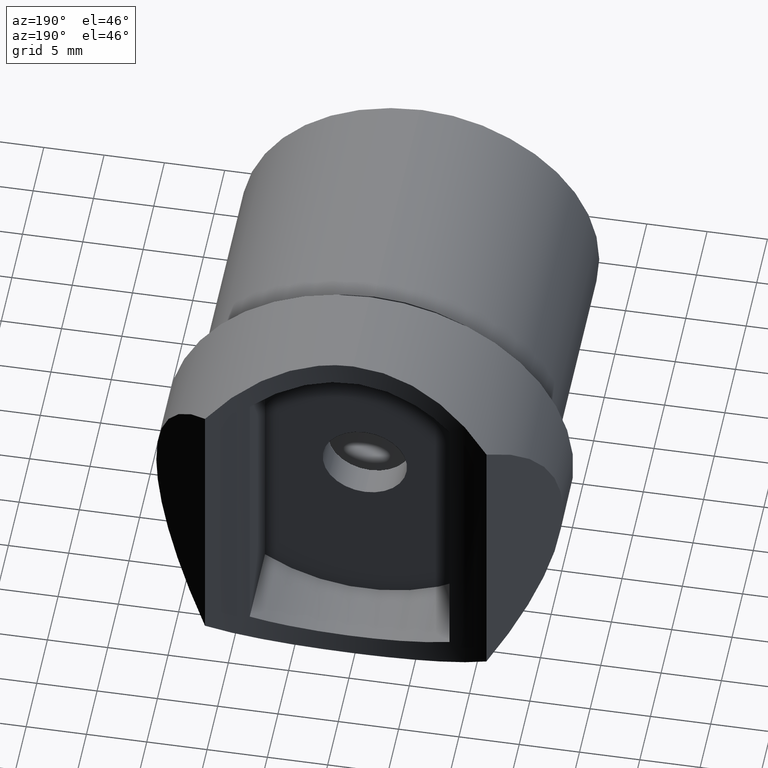
[diagram: clean part render]
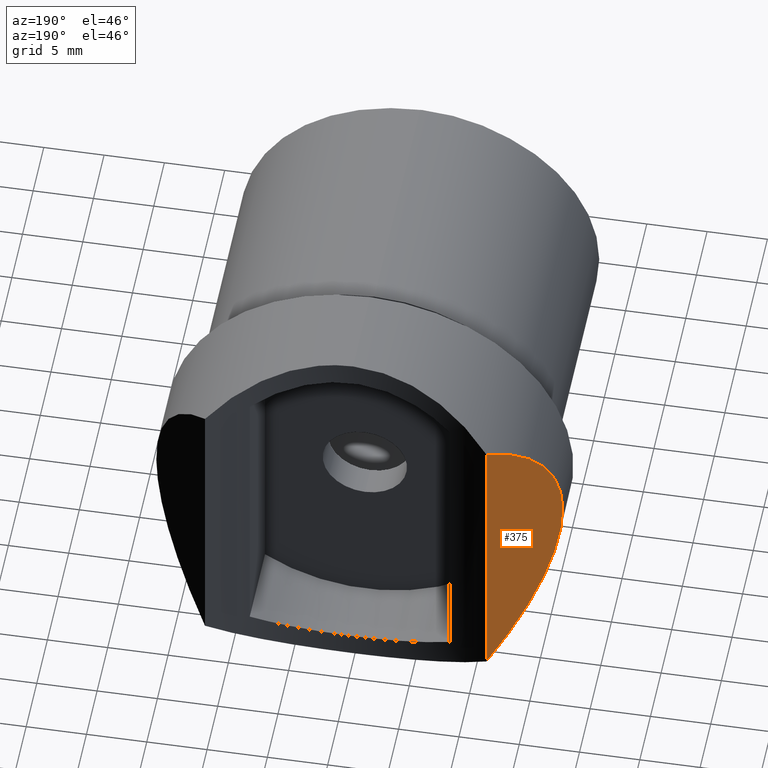
[diagram: same view with one face highlighted and labeled with its STEP entity id]
A machine part, auxiliary view. The second image highlights one B-rep face of the part: STEP entity #375.
In plain terms, the highlighted planar face has unit normal (0.7819, -0.6233, 0).
Its self-contained STEP definition (entity closure, byte-faithful):
#131 = VECTOR ( 'NONE', #12064, 1000.000000000000000 ) ;
#375 = ADVANCED_FACE ( 'NONE', ( #6224 ), #8584, .F. ) ;
#734 = EDGE_CURVE ( 'NONE', #911, #10821, #4305, .T. ) ;
#911 = VERTEX_POINT ( 'NONE', #4551 ) ;
#3212 = CARTESIAN_POINT ( 'NONE',  ( -11.66833321430273100, 11.50000000000000700, 12.15617127223863700 ) ) ;
#3749 = DIRECTION ( 'NONE',  ( 0.6233493240158779500, 0.7819434891659038400, 0.0000000000000000000 ) ) ;
#4197 = CARTESIAN_POINT ( 'NONE',  ( -19.02263816828683200, 2.274593547225940000, 5.097001173290132100 ) ) ;
#4305 =( BOUNDED_CURVE ( )  B_SPLINE_CURVE ( 3, ( #3212, #4197, #7951, #7990 ),
 .UNSPECIFIED., .F., .F. ) 
 B_SPLINE_CURVE_WITH_KNOTS ( ( 4, 4 ),
 ( 5.477313689855880500, 7.089056924503291900 ),
 .UNSPECIFIED. ) 
 CURVE ( )  GEOMETRIC_REPRESENTATION_ITEM ( )  RATIONAL_B_SPLINE_CURVE ( ( 1.000000000000000000, 0.7949884555609385600, 0.7949884555609385600, 1.000000000000000000 ) ) 
 REPRESENTATION_ITEM ( '' )  );
#4551 = CARTESIAN_POINT ( 'NONE',  ( -11.66833321430273100, 11.50000000000000700, 12.15617127223863700 ) ) ;
#5132 = AXIS2_PLACEMENT_3D ( 'NONE', #10366, #11396, #3749 ) ;
#5218 = LINE ( 'NONE', #6341, #131 ) ;
#5410 = ORIENTED_EDGE ( 'NONE', *, *, #734, .F. ) ;
#5672 = ORIENTED_EDGE ( 'NONE', *, *, #10565, .F. ) ;
#6224 = FACE_OUTER_BOUND ( 'NONE', #7865, .T. ) ;
#6341 = CARTESIAN_POINT ( 'NONE',  ( -11.66833321430273100, 11.50000000000000700, -16.85000000000000100 ) ) ;
#7865 = EDGE_LOOP ( 'NONE', ( #5410, #5672 ) ) ;
#7951 = CARTESIAN_POINT ( 'NONE',  ( -19.02263816828683200, 2.274593547225938200, -5.097001173290127700 ) ) ;
#7990 = CARTESIAN_POINT ( 'NONE',  ( -11.66833321430273100, 11.50000000000000700, -12.15617127223863700 ) ) ;
#8584 = PLANE ( 'NONE',  #5132 ) ;
#8857 = CARTESIAN_POINT ( 'NONE',  ( -11.66833321430273100, 11.50000000000000700, -12.15617127223863700 ) ) ;
#10366 = CARTESIAN_POINT ( 'NONE',  ( -16.85000000000000100, 5.000000000000000000, -16.85000000000000100 ) ) ;
#10565 = EDGE_CURVE ( 'NONE', #10821, #911, #5218, .T. ) ;
#10821 = VERTEX_POINT ( 'NONE', #8857 ) ;
#11396 = DIRECTION ( 'NONE',  ( 0.7819434891659038400, -0.6233493240158779500, 0.0000000000000000000 ) ) ;
#12064 = DIRECTION ( 'NONE',  ( -0.0000000000000000000, -0.0000000000000000000, 1.000000000000000000 ) ) ;